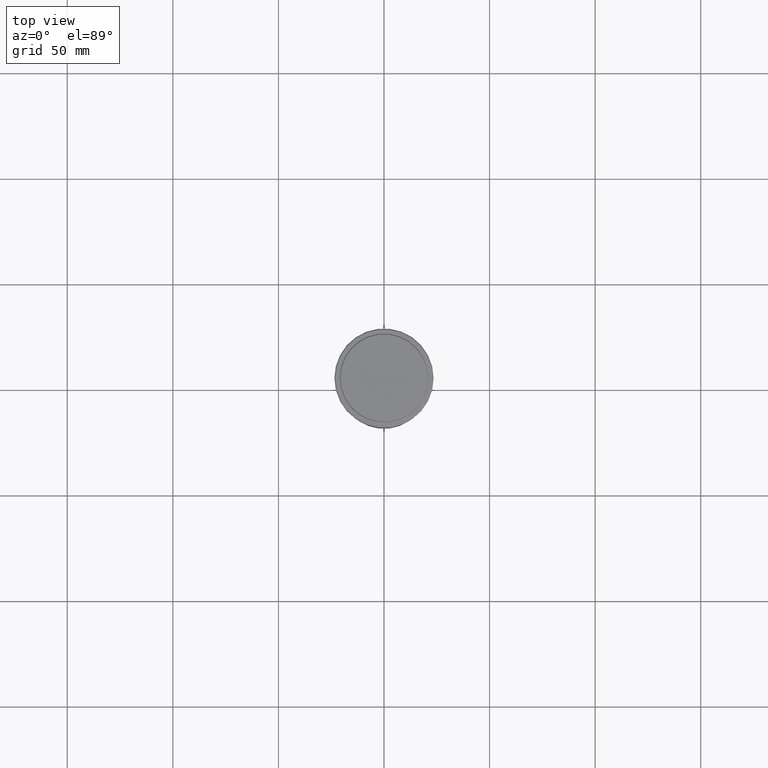
[diagram: clean part render]
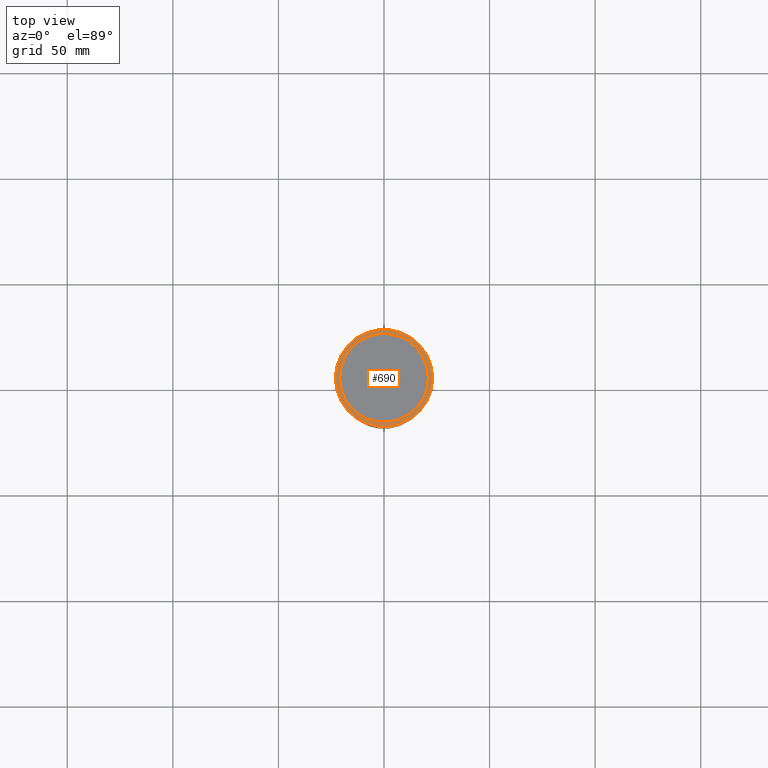
[diagram: same view with one face highlighted and labeled with its STEP entity id]
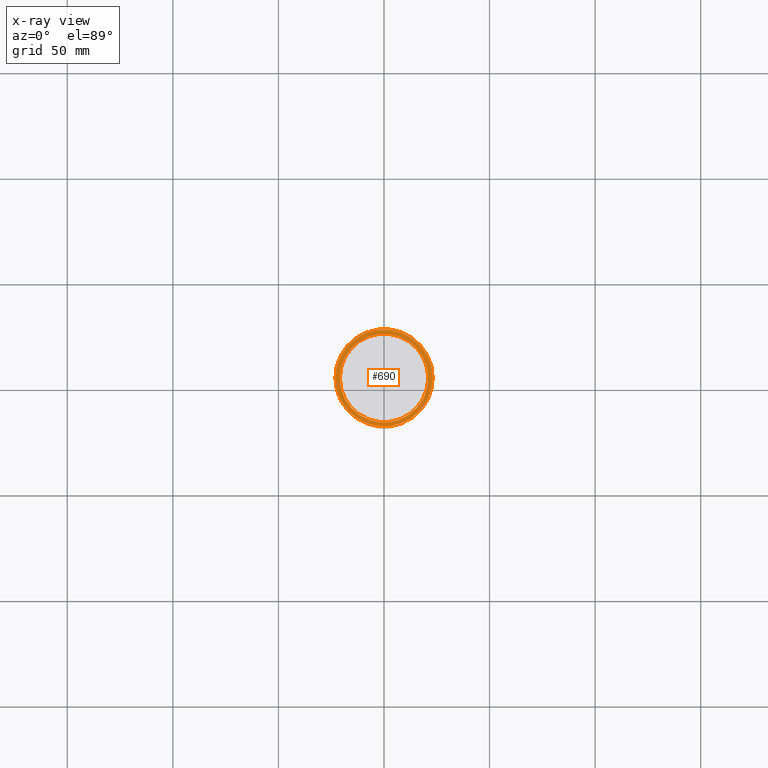
[diagram: x-ray of the same camera — body ghosted, the highlighted face saturated]
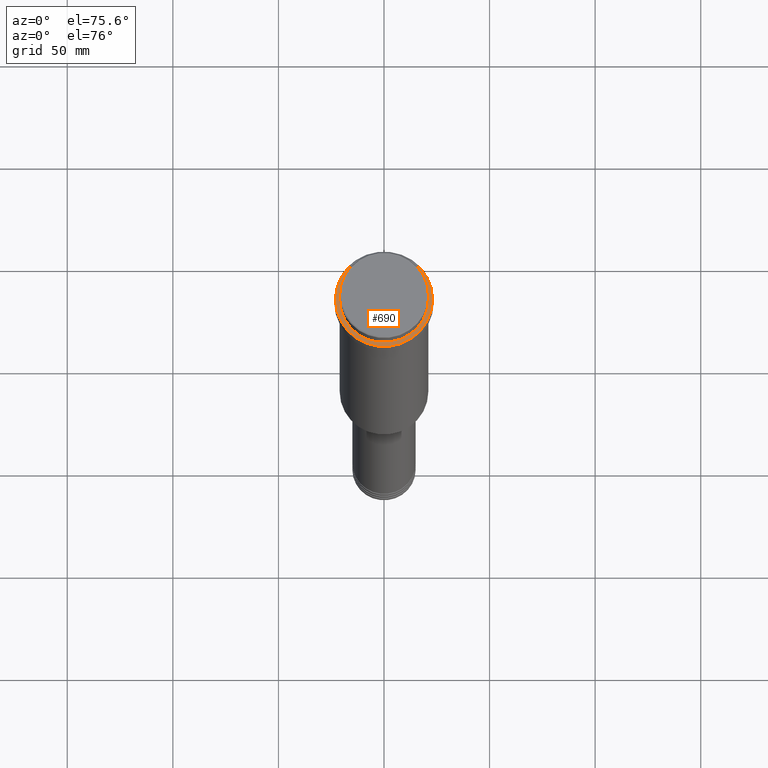
[diagram: same view with one face highlighted and labeled with its STEP entity id]
A machine part, top view. The second image highlights one B-rep face of the part: STEP entity #690.
The next image is the same camera in x-ray: the body ghosted, the highlighted face saturated — about 0% of this face is hidden behind the body in this view.
A second angle (auxiliary view) of the same face is appended — the face is thin or edge-on in the first view.
In plain terms, the highlighted planar face has unit normal (0, -0, 1).
Its self-contained STEP definition (entity closure, byte-faithful):
#2 = DIRECTION ( 'NONE',  ( 1.000000000000000000, 0.000000000000000000, 0.000000000000000000 ) ) ;
#35 = ORIENTED_EDGE ( 'NONE', *, *, #853, .T. ) ;
#130 = CIRCLE ( 'NONE', #928, 23.00000000000002487 ) ;
#155 = DIRECTION ( 'NONE',  ( 1.000000000000000000, 0.000000000000000000, 0.000000000000000000 ) ) ;
#183 = ORIENTED_EDGE ( 'NONE', *, *, #441, .T. ) ;
#186 = DIRECTION ( 'NONE',  ( 0.000000000000000000, 0.000000000000000000, -1.000000000000000000 ) ) ;
#206 = FACE_BOUND ( 'NONE', #245, .T. ) ;
#245 = EDGE_LOOP ( 'NONE', ( #902, #183 ) ) ;
#248 = AXIS2_PLACEMENT_3D ( 'NONE', #975, #1416, #432 ) ;
#320 = VERTEX_POINT ( 'NONE', #1218 ) ;
#333 = CIRCLE ( 'NONE', #378, 20.99999999999999289 ) ;
#341 = CARTESIAN_POINT ( 'NONE',  ( 20.99999999999999289, 0.000000000000000000, -9.000000000000001776 ) ) ;
#356 = DIRECTION ( 'NONE',  ( -0.000000000000000000, -0.000000000000000000, 1.000000000000000000 ) ) ;
#378 = AXIS2_PLACEMENT_3D ( 'NONE', #1342, #1130, #155 ) ;
#402 = EDGE_LOOP ( 'NONE', ( #977, #35 ) ) ;
#428 = CIRCLE ( 'NONE', #248, 23.00000000000002487 ) ;
#432 = DIRECTION ( 'NONE',  ( 1.000000000000000000, 0.000000000000000000, 0.000000000000000000 ) ) ;
#441 = EDGE_CURVE ( 'NONE', #320, #1168, #333, .T. ) ;
#537 = DIRECTION ( 'NONE',  ( 0.000000000000000000, -0.000000000000000000, 1.000000000000000000 ) ) ;
#621 = CARTESIAN_POINT ( 'NONE',  ( 0.000000000000000000, 0.000000000000000000, -9.000000000000001776 ) ) ;
#690 = ADVANCED_FACE ( 'NONE', ( #1035, #206 ), #1199, .T. ) ;
#727 = CARTESIAN_POINT ( 'NONE',  ( -23.00000000000002487, 0.000000000000000000, -9.000000000000001776 ) ) ;
#840 = CIRCLE ( 'NONE', #886, 20.99999999999999289 ) ;
#853 = EDGE_CURVE ( 'NONE', #1155, #1354, #130, .T. ) ;
#886 = AXIS2_PLACEMENT_3D ( 'NONE', #621, #186, #1278 ) ;
#902 = ORIENTED_EDGE ( 'NONE', *, *, #1349, .T. ) ;
#928 = AXIS2_PLACEMENT_3D ( 'NONE', #1115, #356, #1011 ) ;
#975 = CARTESIAN_POINT ( 'NONE',  ( 0.000000000000000000, 0.000000000000000000, -9.000000000000001776 ) ) ;
#977 = ORIENTED_EDGE ( 'NONE', *, *, #1274, .T. ) ;
#1011 = DIRECTION ( 'NONE',  ( 1.000000000000000000, 0.000000000000000000, 0.000000000000000000 ) ) ;
#1035 = FACE_OUTER_BOUND ( 'NONE', #402, .T. ) ;
#1115 = CARTESIAN_POINT ( 'NONE',  ( 0.000000000000000000, 0.000000000000000000, -9.000000000000001776 ) ) ;
#1130 = DIRECTION ( 'NONE',  ( 0.000000000000000000, 0.000000000000000000, -1.000000000000000000 ) ) ;
#1155 = VERTEX_POINT ( 'NONE', #1406 ) ;
#1168 = VERTEX_POINT ( 'NONE', #341 ) ;
#1192 = CARTESIAN_POINT ( 'NONE',  ( 0.000000000000000000, 20.49999999999999645, -9.000000000000001776 ) ) ;
#1199 = PLANE ( 'NONE',  #1321 ) ;
#1218 = CARTESIAN_POINT ( 'NONE',  ( -20.99999999999999289, 2.571758278209440872E-15, -9.000000000000001776 ) ) ;
#1274 = EDGE_CURVE ( 'NONE', #1354, #1155, #428, .T. ) ;
#1278 = DIRECTION ( 'NONE',  ( 1.000000000000000000, 0.000000000000000000, 0.000000000000000000 ) ) ;
#1321 = AXIS2_PLACEMENT_3D ( 'NONE', #1192, #537, #2 ) ;
#1342 = CARTESIAN_POINT ( 'NONE',  ( 0.000000000000000000, 0.000000000000000000, -9.000000000000001776 ) ) ;
#1349 = EDGE_CURVE ( 'NONE', #1168, #320, #840, .T. ) ;
#1354 = VERTEX_POINT ( 'NONE', #727 ) ;
#1406 = CARTESIAN_POINT ( 'NONE',  ( 23.00000000000002487, 2.847303808017597717E-15, -9.000000000000001776 ) ) ;
#1416 = DIRECTION ( 'NONE',  ( -0.000000000000000000, -0.000000000000000000, 1.000000000000000000 ) ) ;